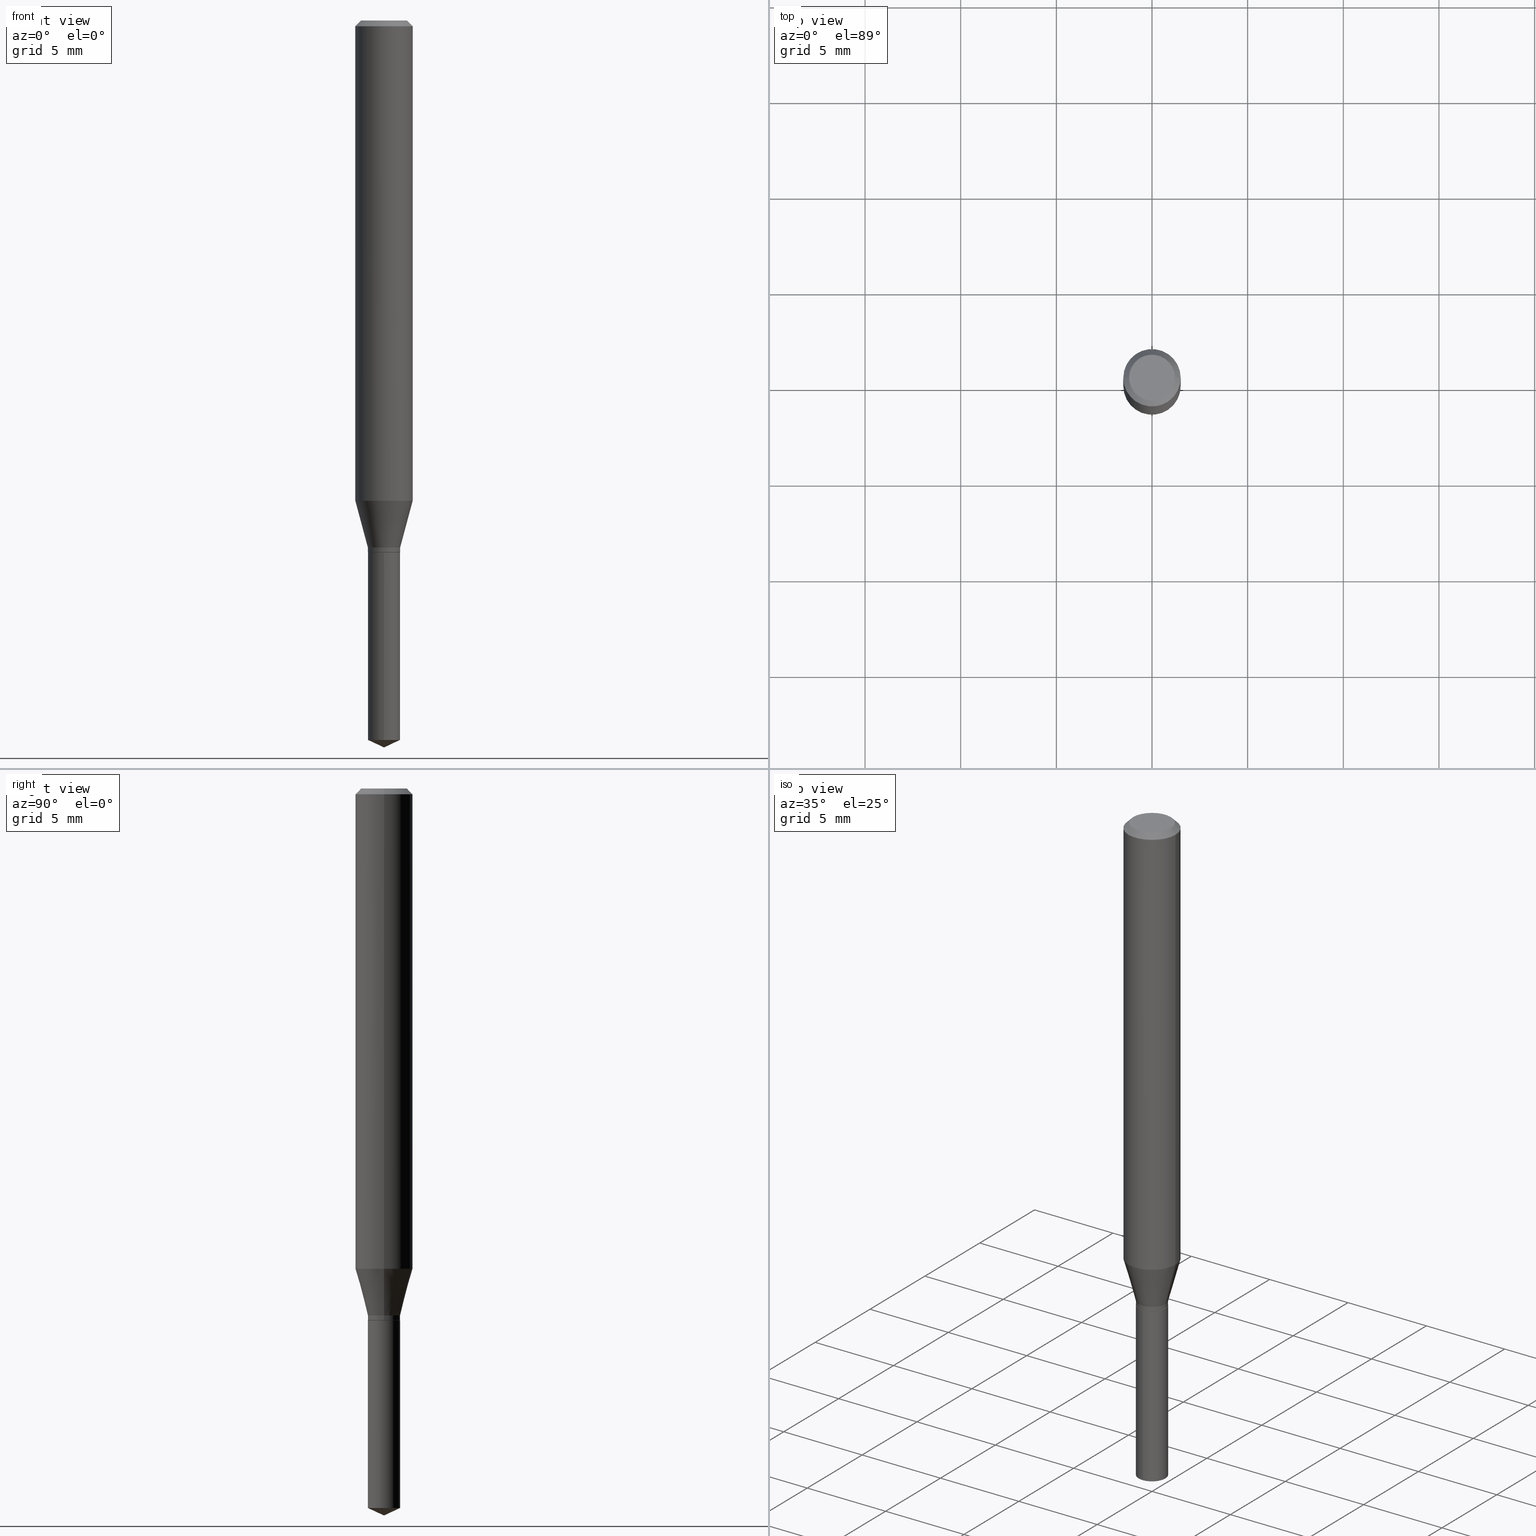
[diagram: canonical four-view strip — front | top / right | iso, engineering-drawing reading convention]
A machine part, canonical four-view strip (front | top / right | iso — engineering-drawing reading convention). The complete STEP part file that produces these views, byte-faithful:
ISO-10303-21;
HEADER;
FILE_DESCRIPTION (( 'STEP AP203' ),
    '1' );
FILE_NAME ('07563.STEP',
    '2024-04-23T23:00:28',
    ( '' ),
    ( '' ),
    'SwSTEP 2.0',
    'SolidWorks 2023',
    '' );
FILE_SCHEMA (( 'CONFIG_CONTROL_DESIGN' ));
ENDSEC;

DATA;
#1 = VERTEX_POINT ( 'NONE', #280 ) ;
#2 = EDGE_CURVE ( 'NONE', #275, #187, #239, .T. ) ;
#3 = CONICAL_SURFACE ( 'NONE', #198, 0.03275000000000000133, 0.7853981633972775267 ) ;
#4 = CIRCLE ( 'NONE', #407, 0.05904999999999999832 ) ;
#5 = CARTESIAN_POINT ( 'NONE',  ( -9.261968845786000133E-28, 1.322362114038720264E-13, 37.87397874015748300 ) ) ;
#6 = EDGE_LOOP ( 'NONE', ( #415, #342, #57, #490 ) ) ;
#7 = DIRECTION ( 'NONE',  ( 1.000000000000000000, -6.982962677686267499E-15, 0.000000000000000000 ) ) ;
#8 = FACE_OUTER_BOUND ( 'NONE', #338, .T. ) ;
#9 =( CONVERSION_BASED_UNIT ( 'INCH', #194 ) LENGTH_UNIT ( ) NAMED_UNIT ( #343 ) );
#10 = CLOSED_SHELL ( 'NONE', ( #324, #39, #47, #306, #248, #474, #129, #33, #339, #136, #216, #115 ) ) ;
#11 = DIRECTION ( 'NONE',  ( -2.445470214571802116E-29, 3.491479321953280158E-15, 1.000000000000000000 ) ) ;
#12 = CONICAL_SURFACE ( 'NONE', #472, 0.03275000000000000133, 0.7853981633972775267 ) ;
#13 = DESIGN_CONTEXT ( 'detailed design', #291, 'design' ) ;
#14 = ORIENTED_EDGE ( 'NONE', *, *, #436, .T. ) ;
#15 = APPROVAL_DATE_TIME ( #400, #347 ) ;
#16 = DIRECTION ( 'NONE',  ( 1.000000000000000000, -6.982962677686267499E-15, 0.000000000000000000 ) ) ;
#17 = PERSON_AND_ORGANIZATION ( #206, #391 ) ;
#18 = CARTESIAN_POINT ( 'NONE',  ( 2.362554596402600471E-16, 0.03324999999999617845, -1.094500000000000028 ) ) ;
#19 = EDGE_CURVE ( 'NONE', #158, #299, #384, .T. ) ;
#20 = APPLICATION_PROTOCOL_DEFINITION ( 'international standard', 'config_control_design', 1994, #291 ) ;
#21 = PLANE ( 'NONE',  #89 ) ;
#22 = CC_DESIGN_APPROVAL ( #428, ( #67 ) ) ;
#23 = VERTEX_POINT ( 'NONE', #282 ) ;
#24 = DATE_AND_TIME ( #366, #455 ) ;
#25 = CARTESIAN_POINT ( 'NONE',  ( 3.620750092037578923E-29, -5.169469978151881884E-15, -1.480595270366346305 ) ) ;
#26 = ORIENTED_EDGE ( 'NONE', *, *, #152, .T. ) ;
#27 = DATE_AND_TIME ( #226, #228 ) ;
#28 = CARTESIAN_POINT ( 'NONE',  ( 2.676565608369632355E-29, -3.821426325363822773E-15, -1.094500000000000028 ) ) ;
#29 = SECURITY_CLASSIFICATION ( '', '', #124 ) ;
#30 = EDGE_LOOP ( 'NONE', ( #35, #169, #128, #458 ) ) ;
#31 = DIRECTION ( 'NONE',  ( 1.000000000000000000, -6.982962677686266711E-15, 0.000000000000000000 ) ) ;
#32 = ORIENTED_EDGE ( 'NONE', *, *, #204, .T. ) ;
#33 = ADVANCED_FACE ( 'NONE', ( #8 ), #381, .T. ) ;
#34 = FACE_OUTER_BOUND ( 'NONE', #307, .T. ) ;
#35 = ORIENTED_EDGE ( 'NONE', *, *, #56, .T. ) ;
#36 = AXIS2_PLACEMENT_3D ( 'NONE', #425, #416, #456 ) ;
#37 = DIRECTION ( 'NONE',  ( -6.982962677686266711E-15, -1.000000000000000000, 3.520397390770457025E-15 ) ) ;
#38 = ORIENTED_EDGE ( 'NONE', *, *, #284, .T. ) ;
#39 = ADVANCED_FACE ( 'NONE', ( #429 ), #334, .T. ) ;
#40 = DIRECTION ( 'NONE',  ( -0.2588190451025211281, 5.211531920934547886E-15, 0.9659258262890679791 ) ) ;
#41 = DIRECTION ( 'NONE',  ( -6.982962677686265922E-15, -1.000000000000000000, 4.108042095735734288E-15 ) ) ;
#42 = AXIS2_PLACEMENT_3D ( 'NONE', #293, #435, #399 ) ;
#43 = AXIS2_PLACEMENT_3D ( 'NONE', #271, #274, #376 ) ;
#44 = DIRECTION ( 'NONE',  ( -6.982962677686266711E-15, -1.000000000000000000, 3.520397390770457025E-15 ) ) ;
#45 = DIRECTION ( 'NONE',  ( -2.445468806185136597E-29, 3.491481338843145583E-15, 1.000000000000000000 ) ) ;
#46 = DIRECTION ( 'NONE',  ( 1.000000000000000000, -6.982962677686266711E-15, 0.000000000000000000 ) ) ;
#47 = ADVANCED_FACE ( 'NONE', ( #195 ), #201, .T. ) ;
#48 = LINE ( 'NONE', #460, #317 ) ;
#49 = DIRECTION ( 'NONE',  ( 1.000000000000000000, -6.982962677686266711E-15, 4.876176775795935793E-29 ) ) ;
#50 = AXIS2_PLACEMENT_3D ( 'NONE', #330, #369, #367 ) ;
#51 = CONICAL_SURFACE ( 'NONE', #406, 0.03325000000000000178, 0.2617993877991498519 ) ;
#52 = FACE_OUTER_BOUND ( 'NONE', #146, .T. ) ;
#53 = DIRECTION ( 'NONE',  ( -1.000000000000000000, 6.982962677686266711E-15, 0.000000000000000000 ) ) ;
#54 =( NAMED_UNIT ( * ) PLANE_ANGLE_UNIT ( ) SI_UNIT ( $, .RADIAN. ) );
#55 = DIRECTION ( 'NONE',  ( 2.445470214571801836E-29, -3.491479321953280158E-15, -1.000000000000000000 ) ) ;
#56 = EDGE_CURVE ( 'NONE', #158, #402, #96, .T. ) ;
#57 = ORIENTED_EDGE ( 'NONE', *, *, #56, .F. ) ;
#58 = VECTOR ( 'NONE', #238, 39.37007874015748143 ) ;
#59 = ORIENTED_EDGE ( 'NONE', *, *, #288, .T. ) ;
#60 = APPROVAL_DATE_TIME ( #292, #428 ) ;
#61 = CARTESIAN_POINT ( 'NONE',  ( 2.676565608369631794E-29, -3.821426325363822773E-15, -1.094499999999999806 ) ) ;
#62 = PLANE ( 'NONE',  #208 ) ;
#63 = ORIENTED_EDGE ( 'NONE', *, *, #192, .F. ) ;
#64 = CARTESIAN_POINT ( 'NONE',  ( 0.05904999999999999832, -4.463468013801466955E-16, -0.01181000000000007218 ) ) ;
#65 = AXIS2_PLACEMENT_3D ( 'NONE', #332, #440, #361 ) ;
#66 = VERTEX_POINT ( 'NONE', #462 ) ;
#67 = PRODUCT_DEFINITION ( 'UNKNOWN', '', #243, #13 ) ;
#68 = DIRECTION ( 'NONE',  ( 1.000000000000000000, -6.982962677686267499E-15, 4.876176775795936353E-29 ) ) ;
#69 = ORIENTED_EDGE ( 'NONE', *, *, #266, .T. ) ;
#70 = EDGE_CURVE ( 'NONE', #187, #190, #242, .T. ) ;
#71 = CALENDAR_DATE ( 2024, 23, 4 ) ;
#72 = DIRECTION ( 'NONE',  ( 1.000000000000000000, -6.982962677686265133E-15, 0.000000000000000000 ) ) ;
#73 = ORIENTED_EDGE ( 'NONE', *, *, #245, .T. ) ;
#74 = LINE ( 'NONE', #64, #199 ) ;
#75 = ORIENTED_EDGE ( 'NONE', *, *, #442, .F. ) ;
#76 = CONICAL_SURFACE ( 'NONE', #423, 84.42940631927426409, 1.134464013796315562 ) ;
#77 = EDGE_CURVE ( 'NONE', #1, #469, #132, .T. ) ;
#78 = FACE_OUTER_BOUND ( 'NONE', #368, .T. ) ;
#79 = CARTESIAN_POINT ( 'NONE',  ( -2.321835090330415843E-16, -0.03325000000000382511, -1.094499999999999806 ) ) ;
#80 = ORIENTED_EDGE ( 'NONE', *, *, #387, .T. ) ;
#81 = CARTESIAN_POINT ( 'NONE',  ( 2.675342873966538993E-29, -3.819680584694400481E-15, -1.093999999999999861 ) ) ;
#82 = ORIENTED_EDGE ( 'NONE', *, *, #77, .T. ) ;
#83 = AXIS2_PLACEMENT_3D ( 'NONE', #353, #321, #53 ) ;
#84 = LOCAL_TIME ( 19, 0, 28.00000000000000000, #99 ) ;
#85 = DIRECTION ( 'NONE',  ( -2.445468806185136877E-29, 3.491481338843145188E-15, 1.000000000000000000 ) ) ;
#86 = CARTESIAN_POINT ( 'NONE',  ( -0.04724000000000000421, 3.504923541997677355E-16, -3.380025165670481712E-19 ) ) ;
#87 = DIRECTION ( 'NONE',  ( -1.000000000000000000, 6.982962677686266711E-15, 0.000000000000000000 ) ) ;
#88 = ORIENTED_EDGE ( 'NONE', *, *, #387, .F. ) ;
#89 = AXIS2_PLACEMENT_3D ( 'NONE', #215, #168, #246 ) ;
#90 = AXIS2_PLACEMENT_3D ( 'NONE', #160, #379, #386 ) ;
#91 = EDGE_CURVE ( 'NONE', #66, #374, #349, .T. ) ;
#92 = EDGE_LOOP ( 'NONE', ( #329, #269, #225 ) ) ;
#93 = PLANE ( 'NONE',  #471 ) ;
#94 = EDGE_LOOP ( 'NONE', ( #185, #75, #14, #138 ) ) ;
#95 = EDGE_CURVE ( 'NONE', #441, #346, #116, .T. ) ;
#96 = CIRCLE ( 'NONE', #277, 0.03325000000000000178 ) ;
#97 = CARTESIAN_POINT ( 'NONE',  ( 2.676565608369632355E-29, -3.821426325363822773E-15, -1.094500000000000028 ) ) ;
#98 = ORIENTED_EDGE ( 'NONE', *, *, #304, .T. ) ;
#99 = COORDINATED_UNIVERSAL_TIME_OFFSET ( 5, 0, .BEHIND. ) ;
#100 = ORIENTED_EDGE ( 'NONE', *, *, #95, .T. ) ;
#101 = CARTESIAN_POINT ( 'NONE',  ( -0.05905000000000011628, -3.030752074152826708E-15, -0.9882130891647225024 ) ) ;
#102 = EDGE_CURVE ( 'NONE', #299, #258, #127, .T. ) ;
#103 = AXIS2_PLACEMENT_3D ( 'NONE', #345, #486, #261 ) ;
#104 = FACE_OUTER_BOUND ( 'NONE', #30, .T. ) ;
#105 = ORIENTED_EDGE ( 'NONE', *, *, #457, .T. ) ;
#106 = PERSON_AND_ORGANIZATION ( #206, #391 ) ;
#107 = ORIENTED_EDGE ( 'NONE', *, *, #232, .F. ) ;
#108 = MANIFOLD_SOLID_BREP ( 'Body-Move/Copy2[2]', #10 ) ;
#109 = MANIFOLD_SOLID_BREP ( 'Body-Move/Copy2[1]', #311 ) ;
#110 = LOCAL_TIME ( 19, 0, 28.00000000000000000, #322 ) ;
#111 = FACE_OUTER_BOUND ( 'NONE', #92, .T. ) ;
#112 = ORIENTED_EDGE ( 'NONE', *, *, #70, .F. ) ;
#113 = LINE ( 'NONE', #79, #220 ) ;
#114 = DIRECTION ( 'NONE',  ( -2.445468806185136597E-29, 3.491481338843145583E-15, 1.000000000000000000 ) ) ;
#115 = ADVANCED_FACE ( 'NONE', ( #298 ), #3, .T. ) ;
#116 = CIRCLE ( 'NONE', #147, 0.04724000000000000421 ) ;
#117 = AXIS2_PLACEMENT_3D ( 'NONE', #81, #193, #7 ) ;
#118 = LINE ( 'NONE', #276, #58 ) ;
#119 = EDGE_LOOP ( 'NONE', ( #26, #73, #482, #309 ) ) ;
#120 = DIRECTION ( 'NONE',  ( -2.445470214571802396E-29, 3.491479321953280158E-15, 1.000000000000000000 ) ) ;
#121 = DIRECTION ( 'NONE',  ( 1.000000000000000000, -6.982962677686266711E-15, 4.876176775795935793E-29 ) ) ;
#122 = ADVANCED_FACE ( 'NONE', ( #176 ), #62, .F. ) ;
#123 = PERSON_AND_ORGANIZATION ( #206, #391 ) ;
#124 = SECURITY_CLASSIFICATION_LEVEL ( 'unclassified' ) ;
#125 = DIRECTION ( 'NONE',  ( -2.445470214571802396E-29, 3.491479321953280158E-15, 1.000000000000000000 ) ) ;
#126 = APPROVAL_ROLE ( '' ) ;
#127 = LINE ( 'NONE', #205, #157 ) ;
#128 = ORIENTED_EDGE ( 'NONE', *, *, #310, .F. ) ;
#129 = ADVANCED_FACE ( 'NONE', ( #401 ), #51, .T. ) ;
#130 = DIRECTION ( 'NONE',  ( 1.000000000000000000, -6.982962677686265133E-15, 0.000000000000000000 ) ) ;
#131 = PERSON_AND_ORGANIZATION ( #206, #391 ) ;
#132 = CIRCLE ( 'NONE', #219, 0.03325000000000000178 ) ;
#133 = FACE_OUTER_BOUND ( 'NONE', #409, .T. ) ;
#134 = VERTEX_POINT ( 'NONE', #325 ) ;
#135 = DIRECTION ( 'NONE',  ( 1.000000000000000000, -6.982962677686267499E-15, 0.000000000000000000 ) ) ;
#136 = ADVANCED_FACE ( 'NONE', ( #133 ), #21, .F. ) ;
#137 = ORIENTED_EDGE ( 'NONE', *, *, #372, .F. ) ;
#138 = ORIENTED_EDGE ( 'NONE', *, *, #70, .T. ) ;
#139 = APPROVAL_PERSON_ORGANIZATION ( #106, #256, #452 ) ;
#140 = COORDINATED_UNIVERSAL_TIME_OFFSET ( 5, 0, .BEHIND. ) ;
#141 = CARTESIAN_POINT ( 'NONE',  ( -0.03325000000000000178, -3.566840588694662478E-15, -1.084499999999999797 ) ) ;
#142 = ORIENTED_EDGE ( 'NONE', *, *, #459, .T. ) ;
#143 = CC_DESIGN_PERSON_AND_ORGANIZATION_ASSIGNMENT ( #344, #373, ( #29 ) ) ;
#144 = ORIENTED_EDGE ( 'NONE', *, *, #310, .T. ) ;
#145 = DIRECTION ( 'NONE',  ( 6.439704144417028775E-15, 0.9063077870366519351, 0.4226182617406950559 ) ) ;
#146 = EDGE_LOOP ( 'NONE', ( #167, #32, #105, #371 ) ) ;
#147 = AXIS2_PLACEMENT_3D ( 'NONE', #461, #45, #255 ) ;
#148 = VECTOR ( 'NONE', #40, 39.37007874015748854 ) ;
#149 = CARTESIAN_POINT ( 'NONE',  ( 3.658668015054778287E-29, -5.223602213574301462E-15, -1.496099999999999985 ) ) ;
#150 = CC_DESIGN_PERSON_AND_ORGANIZATION_ASSIGNMENT ( #162, #468, ( #243 ) ) ;
#151 = DIRECTION ( 'NONE',  ( -6.328713451373374112E-15, -0.9063077870366490485, 0.4226182617407013287 ) ) ;
#152 = EDGE_CURVE ( 'NONE', #374, #23, #335, .T. ) ;
#153 = CARTESIAN_POINT ( 'NONE',  ( -0.03325000000000000178, -3.550256052335157800E-15, -1.084499999999999797 ) ) ;
#154 = DIRECTION ( 'NONE',  ( -2.445468806185136597E-29, 3.491481338843145583E-15, 1.000000000000000000 ) ) ;
#155 =( LENGTH_UNIT ( ) NAMED_UNIT ( * ) SI_UNIT ( $, .METRE. ) );
#156 = DIRECTION ( 'NONE',  ( -2.445468806185136877E-29, 3.491481338843145188E-15, 1.000000000000000000 ) ) ;
#157 = VECTOR ( 'NONE', #289, 39.37007874015748854 ) ;
#158 = VERTEX_POINT ( 'NONE', #475 ) ;
#159 = CIRCLE ( 'NONE', #414, 0.03325000000000000178 ) ;
#160 = CARTESIAN_POINT ( 'NONE',  ( 2.416644283416180076E-29, -3.450327559619166201E-15, -0.9882130891647225024 ) ) ;
#161 = CARTESIAN_POINT ( 'NONE',  ( 0.000000000000000000, 0.000000000000000000, 0.000000000000000000 ) ) ;
#162 = PERSON_AND_ORGANIZATION ( #206, #391 ) ;
#163 = DIRECTION ( 'NONE',  ( -2.445470214571802116E-29, 3.491479321953280158E-15, 1.000000000000000000 ) ) ;
#164 = PERSON_AND_ORGANIZATION ( #206, #391 ) ;
#165 = APPROVAL_STATUS ( 'not_yet_approved' ) ;
#166 = DIRECTION ( 'NONE',  ( 1.000000000000000000, -6.982962677686265133E-15, 0.000000000000000000 ) ) ;
#167 = ORIENTED_EDGE ( 'NONE', *, *, #245, .F. ) ;
#168 = DIRECTION ( 'NONE',  ( 2.438088387897960049E-29, -3.491481338843145188E-15, -1.000000000000000000 ) ) ;
#169 = ORIENTED_EDGE ( 'NONE', *, *, #420, .T. ) ;
#170 = APPLICATION_PROTOCOL_DEFINITION ( 'international standard', 'config_control_design', 1994, #263 ) ;
#171 = CARTESIAN_POINT ( 'NONE',  ( -5.110850297619460247E-30, -8.386323468975328386E-15, -1.094500000000000028 ) ) ;
#172 = ORIENTED_EDGE ( 'NONE', *, *, #420, .F. ) ;
#173 = APPROVAL_DATE_TIME ( #218, #256 ) ;
#174 = AXIS2_PLACEMENT_3D ( 'NONE', #28, #432, #130 ) ;
#175 = CIRCLE ( 'NONE', #103, 0.03325000000000000178 ) ;
#176 = FACE_OUTER_BOUND ( 'NONE', #179, .T. ) ;
#177 = ADVANCED_FACE ( 'NONE', ( #431 ), #253, .T. ) ;
#178 = FACE_OUTER_BOUND ( 'NONE', #6, .T. ) ;
#179 = EDGE_LOOP ( 'NONE', ( #82, #389 ) ) ;
#180 = DIRECTION ( 'NONE',  ( -2.445468806185136597E-29, 3.491481338843145583E-15, 1.000000000000000000 ) ) ;
#181 = CIRCLE ( 'NONE', #65, 0.03275000000000000133 ) ;
#182 = EDGE_LOOP ( 'NONE', ( #314, #59, #265, #211 ) ) ;
#183 = AXIS2_PLACEMENT_3D ( 'NONE', #5, #422, #44 ) ;
#184 = CARTESIAN_POINT ( 'NONE',  ( 0.03325000000000000178, -4.018695021008458987E-15, -1.084499999999999797 ) ) ;
#185 = ORIENTED_EDGE ( 'NONE', *, *, #304, .F. ) ;
#186 = DIRECTION ( 'NONE',  ( -2.445468806185136597E-29, 3.491481338843145583E-15, 1.000000000000000000 ) ) ;
#187 = VERTEX_POINT ( 'NONE', #438 ) ;
#188 = CC_DESIGN_PERSON_AND_ORGANIZATION_ASSIGNMENT ( #17, #477, ( #318 ) ) ;
#189 = CARTESIAN_POINT ( 'NONE',  ( 2.888098660104664204E-31, -4.123439461173780263E-17, -0.01181000000000007218 ) ) ;
#190 = VERTEX_POINT ( 'NONE', #478 ) ;
#191 = AXIS2_PLACEMENT_3D ( 'NONE', #161, #234, #49 ) ;
#192 = EDGE_CURVE ( 'NONE', #247, #134, #388, .T. ) ;
#193 = DIRECTION ( 'NONE',  ( -2.445468806185136597E-29, 3.491481338843145583E-15, 1.000000000000000000 ) ) ;
#194 = LENGTH_MEASURE_WITH_UNIT ( LENGTH_MEASURE( 0.02539999999999999897 ), #155 );
#195 = FACE_OUTER_BOUND ( 'NONE', #294, .T. ) ;
#196 = CARTESIAN_POINT ( 'NONE',  ( -0.03325000000000000178, -3.566840588694662478E-15, -1.093999999999999861 ) ) ;
#197 = CARTESIAN_POINT ( 'NONE',  ( 0.000000000000000000, 0.000000000000000000, 0.000000000000000000 ) ) ;
#198 = AXIS2_PLACEMENT_3D ( 'NONE', #97, #210, #166 ) ;
#199 = VECTOR ( 'NONE', #308, 39.37007874015748143 ) ;
#200 = FACE_OUTER_BOUND ( 'NONE', #354, .T. ) ;
#201 = CYLINDRICAL_SURFACE ( 'NONE', #421, 0.05905000000000006077 ) ;
#202 = DIRECTION ( 'NONE',  ( 1.000000000000000000, 0.000000000000000000, 0.000000000000000000 ) ) ;
#203 = DIRECTION ( 'NONE',  ( 1.000000000000000000, -6.982962677686265922E-15, 4.876176775795935793E-29 ) ) ;
#204 = EDGE_CURVE ( 'NONE', #23, #374, #454, .T. ) ;
#205 = CARTESIAN_POINT ( 'NONE',  ( 0.03325000000000000178, -4.018695021008458987E-15, -1.084499999999999797 ) ) ;
#206 = PERSON ( 'UNSPECIFIED', 'UNSPECIFIED', 'UNSPECIFIED', ('UNSPECIFIED'), ('UNSPECIFIED'), ('UNSPECIFIED') ) ;
#207 = EDGE_CURVE ( 'NONE', #469, #1, #296, .T. ) ;
#208 = AXIS2_PLACEMENT_3D ( 'NONE', #365, #55, #328 ) ;
#209 = CONICAL_SURFACE ( 'NONE', #465, 0.03325000000000000178, 0.2617993877991498519 ) ;
#210 = DIRECTION ( 'NONE',  ( -2.445468806185136597E-29, 3.491481338843145583E-15, 1.000000000000000000 ) ) ;
#211 = ORIENTED_EDGE ( 'NONE', *, *, #266, .F. ) ;
#212 = COORDINATED_UNIVERSAL_TIME_OFFSET ( 5, 0, .BEHIND. ) ;
#213 = FACE_OUTER_BOUND ( 'NONE', #319, .T. ) ;
#214 = PERSON_AND_ORGANIZATION ( #206, #391 ) ;
#215 = CARTESIAN_POINT ( 'NONE',  ( 4.132873053354867254E-48, -5.900647395337818946E-34, -1.690012582823346072E-19 ) ) ;
#216 = ADVANCED_FACE ( 'NONE', ( #213 ), #93, .F. ) ;
#217 = PRODUCT_RELATED_PRODUCT_CATEGORY ( 'detail', '', ( #318 ) ) ;
#218 = DATE_AND_TIME ( #71, #357 ) ;
#219 = AXIS2_PLACEMENT_3D ( 'NONE', #316, #163, #41 ) ;
#220 = VECTOR ( 'NONE', #120, 39.37007874015748143 ) ;
#221 = DIRECTION ( 'NONE',  ( 1.000000000000000000, -6.982962677686267499E-15, 0.000000000000000000 ) ) ;
#222 = ORIENTED_EDGE ( 'NONE', *, *, #459, .F. ) ;
#223 = EDGE_LOOP ( 'NONE', ( #466, #98, #142, #479 ) ) ;
#224 = CARTESIAN_POINT ( 'NONE',  ( 2.652110920307780249E-29, -3.786511511975391124E-15, -1.084499999999999797 ) ) ;
#225 = ORIENTED_EDGE ( 'NONE', *, *, #204, .F. ) ;
#226 = CALENDAR_DATE ( 2024, 23, 4 ) ;
#227 = EDGE_LOOP ( 'NONE', ( #489, #453, #38, #395 ) ) ;
#228 = LOCAL_TIME ( 19, 0, 28.00000000000000000, #140 ) ;
#229 = CARTESIAN_POINT ( 'NONE',  ( 0.03275000000000000133, -4.050118353058048418E-15, -1.094500000000000028 ) ) ;
#230 = LINE ( 'NONE', #281, #251 ) ;
#231 = CARTESIAN_POINT ( 'NONE',  ( 2.675342873966538993E-29, -3.819680584694400481E-15, -1.093999999999999861 ) ) ;
#232 = EDGE_CURVE ( 'NONE', #134, #247, #181, .T. ) ;
#233 = LINE ( 'NONE', #149, #390 ) ;
#234 = DIRECTION ( 'NONE',  ( -2.445468806185136597E-29, 3.491481338843145583E-15, 1.000000000000000000 ) ) ;
#235 = AXIS2_PLACEMENT_3D ( 'NONE', #302, #186, #31 ) ;
#236 = CARTESIAN_POINT ( 'NONE',  ( -0.05904999999999999832, 3.711095515056362547E-16, -0.01181000000000007218 ) ) ;
#237 = DIRECTION ( 'NONE',  ( 1.000000000000000000, -6.982962677686266711E-15, 0.000000000000000000 ) ) ;
#238 = DIRECTION ( 'NONE',  ( -2.445468806185136877E-29, 3.491481338843145188E-15, 1.000000000000000000 ) ) ;
#239 = LINE ( 'NONE', #424, #356 ) ;
#240 = CARTESIAN_POINT ( 'NONE',  ( 2.362554596402695134E-16, 0.03324999999999617845, -1.094500000000000028 ) ) ;
#241 = CARTESIAN_POINT ( 'NONE',  ( 2.888098660104664204E-31, -4.123439461173780263E-17, -0.01181000000000007218 ) ) ;
#242 = CIRCLE ( 'NONE', #268, 0.05904999999999999832 ) ;
#243 = PRODUCT_DEFINITION_FORMATION_WITH_SPECIFIED_SOURCE ( 'ANY', '', #318, .NOT_KNOWN. ) ;
#244 = DIRECTION ( 'NONE',  ( -6.982962677686265922E-15, -1.000000000000000000, 4.108042095735734288E-15 ) ) ;
#245 = EDGE_CURVE ( 'NONE', #23, #469, #394, .T. ) ;
#246 = DIRECTION ( 'NONE',  ( -1.000000000000000000, 6.982962677686265922E-15, -4.876176775795935793E-29 ) ) ;
#247 = VERTEX_POINT ( 'NONE', #488 ) ;
#248 = ADVANCED_FACE ( 'NONE', ( #104 ), #267, .T. ) ;
#249 = DIRECTION ( 'NONE',  ( -2.438088387897960049E-29, 3.491481338843145188E-15, 1.000000000000000000 ) ) ;
#250 = VERTEX_POINT ( 'NONE', #141 ) ;
#251 = VECTOR ( 'NONE', #85, 39.37007874015748143 ) ;
#252 = CARTESIAN_POINT ( 'NONE',  ( 0.000000000000000000, 0.000000000000000000, 0.000000000000000000 ) ) ;
#253 = CYLINDRICAL_SURFACE ( 'NONE', #42, 0.03325000000000000178 ) ;
#254 = APPROVAL_STATUS ( 'not_yet_approved' ) ;
#255 = DIRECTION ( 'NONE',  ( 1.000000000000000000, -6.982962677686266711E-15, 4.876185090822587894E-29 ) ) ;
#256 = APPROVAL ( #403, 'UNSPECIFIED' ) ;
#257 = DIRECTION ( 'NONE',  ( -2.445470214571802116E-29, 3.491479321953280158E-15, 1.000000000000000000 ) ) ;
#258 = VERTEX_POINT ( 'NONE', #337 ) ;
#259 = VECTOR ( 'NONE', #125, 39.37007874015748143 ) ;
#260 = CONICAL_SURFACE ( 'NONE', #313, 0.05904999999999999832, 0.7853981633974452814 ) ;
#261 = DIRECTION ( 'NONE',  ( 1.000000000000000000, -6.982962677686267499E-15, 0.000000000000000000 ) ) ;
#262 = ORIENTED_EDGE ( 'NONE', *, *, #382, .T. ) ;
#263 = APPLICATION_CONTEXT ( 'configuration controlled 3d designs of mechanical parts and assemblies' ) ;
#264 = DIRECTION ( 'NONE',  ( -2.445468806185136597E-29, 3.491481338843145583E-15, 1.000000000000000000 ) ) ;
#265 = ORIENTED_EDGE ( 'NONE', *, *, #102, .T. ) ;
#266 = EDGE_CURVE ( 'NONE', #275, #258, #378, .T. ) ;
#267 = CYLINDRICAL_SURFACE ( 'NONE', #448, 0.03325000000000000178 ) ;
#268 = AXIS2_PLACEMENT_3D ( 'NONE', #241, #114, #237 ) ;
#269 = ORIENTED_EDGE ( 'NONE', *, *, #91, .T. ) ;
#270 = ADVANCED_FACE ( 'NONE', ( #78 ), #76, .T. ) ;
#271 = CARTESIAN_POINT ( 'NONE',  ( 0.000000000000000000, 0.000000000000000000, 0.000000000000000000 ) ) ;
#272 = ORIENTED_EDGE ( 'NONE', *, *, #2, .F. ) ;
#273 = CC_DESIGN_PERSON_AND_ORGANIZATION_ASSIGNMENT ( #131, #470, ( #67 ) ) ;
#274 = DIRECTION ( 'NONE',  ( -2.445468806185136597E-29, 3.491481338843145583E-15, 1.000000000000000000 ) ) ;
#275 = VERTEX_POINT ( 'NONE', #101 ) ;
#276 = CARTESIAN_POINT ( 'NONE',  ( 0.05905000000000006077, -4.123439461173744764E-16, 2.879382386107503023E-30 ) ) ;
#277 = AXIS2_PLACEMENT_3D ( 'NONE', #231, #154, #16 ) ;
#278 = CIRCLE ( 'NONE', #90, 0.05905000000000011628 ) ;
#279 = LINE ( 'NONE', #236, #341 ) ;
#280 = CARTESIAN_POINT ( 'NONE',  ( -2.321835090330415843E-16, -0.03325000000000382511, -1.094499999999999806 ) ) ;
#281 = CARTESIAN_POINT ( 'NONE',  ( -0.03325000000000000178, 2.362554596402333244E-16, -1.635545917509756392E-30 ) ) ;
#282 = CARTESIAN_POINT ( 'NONE',  ( 2.362554596402695134E-16, 0.03324999999999482536, -1.480595270366346305 ) ) ;
#283 = PERSON_AND_ORGANIZATION_ROLE ( 'design_supplier' ) ;
#284 = EDGE_CURVE ( 'NONE', #247, #158, #300, .T. ) ;
#285 = AXIS2_PLACEMENT_3D ( 'NONE', #61, #392, #244 ) ;
#286 = CC_DESIGN_SECURITY_CLASSIFICATION ( #29, ( #243 ) ) ;
#287 = MECHANICAL_CONTEXT ( 'NONE', #263, 'mechanical' ) ;
#288 = EDGE_CURVE ( 'NONE', #250, #299, #159, .T. ) ;
#289 = DIRECTION ( 'NONE',  ( 0.2588190451025211281, 1.565188264969622954E-15, 0.9659258262890679791 ) ) ;
#290 = ORIENTED_EDGE ( 'NONE', *, *, #19, .T. ) ;
#291 = APPLICATION_CONTEXT ( 'configuration controlled 3d designs of mechanical parts and assemblies' ) ;
#292 = DATE_AND_TIME ( #398, #110 ) ;
#293 = CARTESIAN_POINT ( 'NONE',  ( 2.676565608369631794E-29, -3.821426325363822773E-15, -1.094499999999999806 ) ) ;
#294 = EDGE_LOOP ( 'NONE', ( #363, #417, #222, #88 ) ) ;
#295 = DIRECTION ( 'NONE',  ( -6.982962677686265922E-15, -1.000000000000000000, 0.000000000000000000 ) ) ;
#296 = CIRCLE ( 'NONE', #285, 0.03325000000000000178 ) ;
#297 = AXIS2_PLACEMENT_3D ( 'NONE', #252, #430, #202 ) ;
#298 = FACE_OUTER_BOUND ( 'NONE', #227, .T. ) ;
#299 = VERTEX_POINT ( 'NONE', #184 ) ;
#300 = LINE ( 'NONE', #229, #463 ) ;
#301 = DATE_TIME_ROLE ( 'classification_date' ) ;
#302 = CARTESIAN_POINT ( 'NONE',  ( 2.416644283416180076E-29, -3.450327559619166201E-15, -0.9882130891647225024 ) ) ;
#303 = ORIENTED_EDGE ( 'NONE', *, *, #288, .F. ) ;
#304 = EDGE_CURVE ( 'NONE', #441, #190, #74, .T. ) ;
#305 = CONICAL_SURFACE ( 'NONE', #183, 84.42940631927426409, 1.134464013796315562 ) ;
#306 = ADVANCED_FACE ( 'NONE', ( #34 ), #209, .T. ) ;
#307 = EDGE_LOOP ( 'NONE', ( #144, #413, #137, #333 ) ) ;
#308 = DIRECTION ( 'NONE',  ( 0.7071067811865453523, -7.319954787623248157E-15, -0.7071067811865496822 ) ) ;
#309 = ORIENTED_EDGE ( 'NONE', *, *, #457, .F. ) ;
#310 = EDGE_CURVE ( 'NONE', #299, #250, #175, .T. ) ;
#311 = CLOSED_SHELL ( 'NONE', ( #177, #270, #405, #473, #122 ) ) ;
#312 = CARTESIAN_POINT ( 'NONE',  ( 0.04724000000000000421, -3.852183633974369345E-16, -3.380025165621689721E-19 ) ) ;
#313 = AXIS2_PLACEMENT_3D ( 'NONE', #189, #315, #87 ) ;
#314 = ORIENTED_EDGE ( 'NONE', *, *, #484, .F. ) ;
#315 = DIRECTION ( 'NONE',  ( 2.445468806185136597E-29, -3.491481338843145583E-15, -1.000000000000000000 ) ) ;
#316 = CARTESIAN_POINT ( 'NONE',  ( 2.676565608369631794E-29, -3.821426325363822773E-15, -1.094499999999999806 ) ) ;
#317 = VECTOR ( 'NONE', #418, 39.37007874015748143 ) ;
#318 = PRODUCT ( '07563', '07563', '', ( #287 ) ) ;
#319 = EDGE_LOOP ( 'NONE', ( #63, #107 ) ) ;
#320 = CARTESIAN_POINT ( 'NONE',  ( -2.321835090330320687E-16, -0.03325000000000517125, -1.480595270366346305 ) ) ;
#321 = DIRECTION ( 'NONE',  ( 2.445468806185136597E-29, -3.491481338843145583E-15, -1.000000000000000000 ) ) ;
#322 = COORDINATED_UNIVERSAL_TIME_OFFSET ( 5, 0, .BEHIND. ) ;
#323 = CC_DESIGN_DATE_AND_TIME_ASSIGNMENT ( #24, #480, ( #67 ) ) ;
#324 = ADVANCED_FACE ( 'NONE', ( #178 ), #12, .T. ) ;
#325 = CARTESIAN_POINT ( 'NONE',  ( -0.03275000000000000133, -3.586074352228278358E-15, -1.094500000000000028 ) ) ;
#326 = VECTOR ( 'NONE', #359, 39.37007874015748143 ) ;
#327 = CIRCLE ( 'NONE', #36, 0.04724000000000000421 ) ;
#328 = DIRECTION ( 'NONE',  ( 6.982962677686265922E-15, 1.000000000000000000, -3.491479321953280158E-15 ) ) ;
#329 = ORIENTED_EDGE ( 'NONE', *, *, #382, .F. ) ;
#330 = CARTESIAN_POINT ( 'NONE',  ( 3.620750092037578923E-29, -5.169469978151881884E-15, -1.480595270366346305 ) ) ;
#331 = ORIENTED_EDGE ( 'NONE', *, *, #442, .T. ) ;
#332 = CARTESIAN_POINT ( 'NONE',  ( 2.676565608369632355E-29, -3.821426325363822773E-15, -1.094500000000000028 ) ) ;
#333 = ORIENTED_EDGE ( 'NONE', *, *, #102, .F. ) ;
#334 = CONICAL_SURFACE ( 'NONE', #83, 0.05904999999999999832, 0.7853981633974452814 ) ;
#335 = CIRCLE ( 'NONE', #50, 0.03325000000000000178 ) ;
#336 = CC_DESIGN_APPROVAL ( #256, ( #29 ) ) ;
#337 = CARTESIAN_POINT ( 'NONE',  ( 0.05905000000000011628, -3.862671505736541121E-15, -0.9882130891647225024 ) ) ;
#338 = EDGE_LOOP ( 'NONE', ( #272, #69, #80, #112 ) ) ;
#339 = ADVANCED_FACE ( 'NONE', ( #352 ), #260, .T. ) ;
#340 = CARTESIAN_POINT ( 'NONE',  ( 2.676565608369632355E-29, -3.821426325363822773E-15, -1.094500000000000028 ) ) ;
#341 = VECTOR ( 'NONE', #385, 39.37007874015748143 ) ;
#342 = ORIENTED_EDGE ( 'NONE', *, *, #351, .T. ) ;
#343 = DIMENSIONAL_EXPONENTS ( 1.000000000000000000, 0.000000000000000000, 0.000000000000000000, 0.000000000000000000, 0.000000000000000000, 0.000000000000000000, 0.000000000000000000 ) ;
#344 = PERSON_AND_ORGANIZATION ( #206, #391 ) ;
#345 = CARTESIAN_POINT ( 'NONE',  ( 2.652110920307780249E-29, -3.786511511975391124E-15, -1.084499999999999797 ) ) ;
#346 = VERTEX_POINT ( 'NONE', #86 ) ;
#347 = APPROVAL ( #254, 'UNSPECIFIED' ) ;
#348 = VECTOR ( 'NONE', #151, 39.37007874015748143 ) ;
#349 = LINE ( 'NONE', #419, #348 ) ;
#350 = CYLINDRICAL_SURFACE ( 'NONE', #370, 0.03325000000000000178 ) ;
#351 = EDGE_CURVE ( 'NONE', #134, #402, #48, .T. ) ;
#352 = FACE_OUTER_BOUND ( 'NONE', #94, .T. ) ;
#353 = CARTESIAN_POINT ( 'NONE',  ( 2.888098660104664204E-31, -4.123439461173780263E-17, -0.01181000000000007218 ) ) ;
#354 = EDGE_LOOP ( 'NONE', ( #172, #447, #290, #303 ) ) ;
#355 = CARTESIAN_POINT ( 'NONE',  ( 2.676565608369631794E-29, -3.821426325363822773E-15, -1.094499999999999806 ) ) ;
#356 = VECTOR ( 'NONE', #156, 39.37007874015748143 ) ;
#357 = LOCAL_TIME ( 19, 0, 28.00000000000000000, #450 ) ;
#358 = CYLINDRICAL_SURFACE ( 'NONE', #43, 0.03325000000000000178 ) ;
#359 = DIRECTION ( 'NONE',  ( -2.445468806185136877E-29, 3.491481338843145188E-15, 1.000000000000000000 ) ) ;
#360 = EDGE_CURVE ( 'NONE', #402, #158, #487, .T. ) ;
#361 = DIRECTION ( 'NONE',  ( 1.000000000000000000, -6.982962677686265133E-15, 0.000000000000000000 ) ) ;
#362 = DIRECTION ( 'NONE',  ( -2.445468806185136597E-29, 3.491481338843145583E-15, 1.000000000000000000 ) ) ;
#363 = ORIENTED_EDGE ( 'NONE', *, *, #372, .T. ) ;
#364 = CC_DESIGN_APPROVAL ( #347, ( #243 ) ) ;
#365 = CARTESIAN_POINT ( 'NONE',  ( 2.676565608369631794E-29, -3.821426325363822773E-15, -1.094499999999999806 ) ) ;
#366 = CALENDAR_DATE ( 2024, 23, 4 ) ;
#367 = DIRECTION ( 'NONE',  ( -6.982962677686265922E-15, -1.000000000000000000, 0.000000000000000000 ) ) ;
#368 = EDGE_LOOP ( 'NONE', ( #476, #262, #433 ) ) ;
#369 = DIRECTION ( 'NONE',  ( -2.445470214571802116E-29, 3.491479321953280158E-15, 1.000000000000000000 ) ) ;
#370 = AXIS2_PLACEMENT_3D ( 'NONE', #355, #11, #467 ) ;
#371 = ORIENTED_EDGE ( 'NONE', *, *, #207, .F. ) ;
#372 = EDGE_CURVE ( 'NONE', #258, #275, #278, .T. ) ;
#373 = PERSON_AND_ORGANIZATION_ROLE ( 'classification_officer' ) ;
#374 = VERTEX_POINT ( 'NONE', #320 ) ;
#375 = DIRECTION ( 'NONE',  ( -2.445468806185136597E-29, 3.491481338843145583E-15, 1.000000000000000000 ) ) ;
#376 = DIRECTION ( 'NONE',  ( 1.000000000000000000, -6.982962677686267499E-15, 4.876176775795936353E-29 ) ) ;
#377 = DIRECTION ( 'NONE',  ( -2.445468806185136597E-29, 3.491481338843145583E-15, 1.000000000000000000 ) ) ;
#378 = CIRCLE ( 'NONE', #235, 0.05905000000000011628 ) ;
#379 = DIRECTION ( 'NONE',  ( -2.445468806185136597E-29, 3.491481338843145583E-15, 1.000000000000000000 ) ) ;
#380 = APPROVAL_PERSON_ORGANIZATION ( #214, #428, #126 ) ;
#381 = CYLINDRICAL_SURFACE ( 'NONE', #191, 0.05905000000000006077 ) ;
#382 = EDGE_CURVE ( 'NONE', #66, #23, #233, .T. ) ;
#383 = DIRECTION ( 'NONE',  ( -2.445468806185136597E-29, 3.491481338843145583E-15, 1.000000000000000000 ) ) ;
#384 = LINE ( 'NONE', #426, #326 ) ;
#385 = DIRECTION ( 'NONE',  ( -0.7071067811865453523, 2.468850131082234184E-15, -0.7071067811865496822 ) ) ;
#386 = DIRECTION ( 'NONE',  ( 1.000000000000000000, -6.982962677686266711E-15, 0.000000000000000000 ) ) ;
#387 = EDGE_CURVE ( 'NONE', #258, #190, #118, .T. ) ;
#388 = CIRCLE ( 'NONE', #174, 0.03275000000000000133 ) ;
#389 = ORIENTED_EDGE ( 'NONE', *, *, #207, .T. ) ;
#390 = VECTOR ( 'NONE', #145, 39.37007874015748854 ) ;
#391 = ORGANIZATION ( 'UNSPECIFIED', 'UNSPECIFIED', '' ) ;
#392 = DIRECTION ( 'NONE',  ( -2.445470214571802116E-29, 3.491479321953280158E-15, 1.000000000000000000 ) ) ;
#393 = CC_DESIGN_DATE_AND_TIME_ASSIGNMENT ( #27, #301, ( #29 ) ) ;
#394 = LINE ( 'NONE', #18, #259 ) ;
#395 = ORIENTED_EDGE ( 'NONE', *, *, #360, .F. ) ;
#396 = AXIS2_PLACEMENT_3D ( 'NONE', #25, #485, #295 ) ;
#397 = UNCERTAINTY_MEASURE_WITH_UNIT (LENGTH_MEASURE( 1.000000000000000082E-05 ), #9, 'distance_accuracy_value', 'NONE');
#398 = CALENDAR_DATE ( 2024, 23, 4 ) ;
#399 = DIRECTION ( 'NONE',  ( -6.982962677686265922E-15, -1.000000000000000000, 4.108042095735734288E-15 ) ) ;
#400 = DATE_AND_TIME ( #434, #84 ) ;
#401 = FACE_OUTER_BOUND ( 'NONE', #182, .T. ) ;
#402 = VERTEX_POINT ( 'NONE', #196 ) ;
#403 = APPROVAL_STATUS ( 'not_yet_approved' ) ;
#404 = DIRECTION ( 'NONE',  ( 1.000000000000000000, -6.982962677686267499E-15, 0.000000000000000000 ) ) ;
#405 = ADVANCED_FACE ( 'NONE', ( #111 ), #305, .T. ) ;
#406 = AXIS2_PLACEMENT_3D ( 'NONE', #481, #362, #135 ) ;
#407 = AXIS2_PLACEMENT_3D ( 'NONE', #427, #383, #46 ) ;
#408 = CARTESIAN_POINT ( 'NONE',  ( 0.000000000000000000, 0.000000000000000000, 0.000000000000000000 ) ) ;
#409 = EDGE_LOOP ( 'NONE', ( #331, #100 ) ) ;
#410 = ADVANCED_BREP_SHAPE_REPRESENTATION ( '07563', ( #109, #108, #297 ), #483 ) ;
#411 = CARTESIAN_POINT ( 'NONE',  ( 2.652110920307780249E-29, -3.786511511975391124E-15, -1.084499999999999797 ) ) ;
#412 = CARTESIAN_POINT ( 'NONE',  ( -9.261968845786000133E-28, 1.322362114038720264E-13, 37.87397874015748300 ) ) ;
#413 = ORIENTED_EDGE ( 'NONE', *, *, #484, .T. ) ;
#414 = AXIS2_PLACEMENT_3D ( 'NONE', #224, #446, #404 ) ;
#415 = ORIENTED_EDGE ( 'NONE', *, *, #192, .T. ) ;
#416 = DIRECTION ( 'NONE',  ( -2.445468806185136597E-29, 3.491481338843145583E-15, 1.000000000000000000 ) ) ;
#417 = ORIENTED_EDGE ( 'NONE', *, *, #2, .T. ) ;
#418 = DIRECTION ( 'NONE',  ( -0.7071067811864267805, 7.493145998869918709E-15, 0.7071067811866682540 ) ) ;
#419 = CARTESIAN_POINT ( 'NONE',  ( 3.658664905062460986E-29, -5.223606628546217219E-15, -1.496099999999999985 ) ) ;
#420 = EDGE_CURVE ( 'NONE', #402, #250, #230, .T. ) ;
#421 = AXIS2_PLACEMENT_3D ( 'NONE', #197, #377, #121 ) ;
#422 = DIRECTION ( 'NONE',  ( -2.445470214571802116E-29, 3.491479321953280158E-15, 1.000000000000000000 ) ) ;
#423 = AXIS2_PLACEMENT_3D ( 'NONE', #412, #257, #37 ) ;
#424 = CARTESIAN_POINT ( 'NONE',  ( -0.05905000000000006077, 4.195754854663395916E-16, -2.904631170795524694E-30 ) ) ;
#425 = CARTESIAN_POINT ( 'NONE',  ( 8.265746106709734507E-48, -1.180129479067563789E-33, -3.380025165646692144E-19 ) ) ;
#426 = CARTESIAN_POINT ( 'NONE',  ( 0.03325000000000000178, -2.321835090330684056E-16, 1.621328777952148847E-30 ) ) ;
#427 = CARTESIAN_POINT ( 'NONE',  ( 2.888098660104664204E-31, -4.123439461173780263E-17, -0.01181000000000007218 ) ) ;
#428 = APPROVAL ( #165, 'UNSPECIFIED' ) ;
#429 = FACE_OUTER_BOUND ( 'NONE', #223, .T. ) ;
#430 = DIRECTION ( 'NONE',  ( 0.000000000000000000, 0.000000000000000000, 1.000000000000000000 ) ) ;
#431 = FACE_OUTER_BOUND ( 'NONE', #119, .T. ) ;
#432 = DIRECTION ( 'NONE',  ( -2.445468806185136597E-29, 3.491481338843145583E-15, 1.000000000000000000 ) ) ;
#433 = ORIENTED_EDGE ( 'NONE', *, *, #152, .F. ) ;
#434 = CALENDAR_DATE ( 2024, 23, 4 ) ;
#435 = DIRECTION ( 'NONE',  ( -2.445470214571802116E-29, 3.491479321953280158E-15, 1.000000000000000000 ) ) ;
#436 = EDGE_CURVE ( 'NONE', #346, #187, #279, .T. ) ;
#437 =( NAMED_UNIT ( * ) SI_UNIT ( $, .STERADIAN. ) SOLID_ANGLE_UNIT ( ) );
#438 = CARTESIAN_POINT ( 'NONE',  ( -0.05904999999999999832, -1.326205491649111683E-15, -0.01181000000000007218 ) ) ;
#439 = APPROVAL_ROLE ( '' ) ;
#440 = DIRECTION ( 'NONE',  ( -2.445468806185136597E-29, 3.491481338843145583E-15, 1.000000000000000000 ) ) ;
#441 = VERTEX_POINT ( 'NONE', #312 ) ;
#442 = EDGE_CURVE ( 'NONE', #346, #441, #327, .T. ) ;
#443 = DIRECTION ( 'NONE',  ( 0.7071067811864267805, -2.468850131080992517E-15, 0.7071067811866682540 ) ) ;
#444 = PRODUCT_DEFINITION_SHAPE ( 'NONE', 'NONE',  #67 ) ;
#445 = SHAPE_DEFINITION_REPRESENTATION ( #444, #410 ) ;
#446 = DIRECTION ( 'NONE',  ( -2.445468806185136597E-29, 3.491481338843145583E-15, 1.000000000000000000 ) ) ;
#447 = ORIENTED_EDGE ( 'NONE', *, *, #360, .T. ) ;
#448 = AXIS2_PLACEMENT_3D ( 'NONE', #408, #375, #68 ) ;
#449 = APPROVAL_PERSON_ORGANIZATION ( #164, #347, #439 ) ;
#450 = COORDINATED_UNIVERSAL_TIME_OFFSET ( 5, 0, .BEHIND. ) ;
#451 = CC_DESIGN_PERSON_AND_ORGANIZATION_ASSIGNMENT ( #123, #283, ( #243 ) ) ;
#452 = APPROVAL_ROLE ( '' ) ;
#453 = ORIENTED_EDGE ( 'NONE', *, *, #232, .T. ) ;
#454 = CIRCLE ( 'NONE', #396, 0.03325000000000000178 ) ;
#455 = LOCAL_TIME ( 19, 0, 28.00000000000000000, #212 ) ;
#456 = DIRECTION ( 'NONE',  ( 1.000000000000000000, -6.982962677686266711E-15, 4.876185090822587894E-29 ) ) ;
#457 = EDGE_CURVE ( 'NONE', #374, #1, #113, .T. ) ;
#458 = ORIENTED_EDGE ( 'NONE', *, *, #19, .F. ) ;
#459 = EDGE_CURVE ( 'NONE', #190, #187, #4, .T. ) ;
#460 = CARTESIAN_POINT ( 'NONE',  ( -0.03275000000000000133, -3.588723579402390347E-15, -1.094500000000000028 ) ) ;
#461 = CARTESIAN_POINT ( 'NONE',  ( 8.265746106709734507E-48, -1.180129479067563789E-33, -3.380025165646692144E-19 ) ) ;
#462 = CARTESIAN_POINT ( 'NONE',  ( 3.658667988020872822E-29, -5.223602213574301462E-15, -1.496099999999999985 ) ) ;
#463 = VECTOR ( 'NONE', #443, 39.37007874015748143 ) ;
#464 = LINE ( 'NONE', #153, #148 ) ;
#465 = AXIS2_PLACEMENT_3D ( 'NONE', #411, #180, #221 ) ;
#466 = ORIENTED_EDGE ( 'NONE', *, *, #95, .F. ) ;
#467 = DIRECTION ( 'NONE',  ( -6.982962677686265922E-15, -1.000000000000000000, 4.108042095735734288E-15 ) ) ;
#468 = PERSON_AND_ORGANIZATION_ROLE ( 'creator' ) ;
#469 = VERTEX_POINT ( 'NONE', #240 ) ;
#470 = PERSON_AND_ORGANIZATION_ROLE ( 'creator' ) ;
#471 = AXIS2_PLACEMENT_3D ( 'NONE', #171, #249, #203 ) ;
#472 = AXIS2_PLACEMENT_3D ( 'NONE', #340, #264, #72 ) ;
#473 = ADVANCED_FACE ( 'NONE', ( #52 ), #350, .T. ) ;
#474 = ADVANCED_FACE ( 'NONE', ( #200 ), #358, .T. ) ;
#475 = CARTESIAN_POINT ( 'NONE',  ( 0.03325000000000000178, -4.051864093727469133E-15, -1.093999999999999861 ) ) ;
#476 = ORIENTED_EDGE ( 'NONE', *, *, #91, .F. ) ;
#477 = PERSON_AND_ORGANIZATION_ROLE ( 'design_owner' ) ;
#478 = CARTESIAN_POINT ( 'NONE',  ( 0.05904999999999999832, -4.535783407291118600E-16, -0.01181000000000007218 ) ) ;
#479 = ORIENTED_EDGE ( 'NONE', *, *, #436, .F. ) ;
#480 = DATE_TIME_ROLE ( 'creation_date' ) ;
#481 = CARTESIAN_POINT ( 'NONE',  ( 2.652110920307780249E-29, -3.786511511975391124E-15, -1.084499999999999797 ) ) ;
#482 = ORIENTED_EDGE ( 'NONE', *, *, #77, .F. ) ;
#483 =( GEOMETRIC_REPRESENTATION_CONTEXT ( 3 ) GLOBAL_UNCERTAINTY_ASSIGNED_CONTEXT ( ( #397 ) ) GLOBAL_UNIT_ASSIGNED_CONTEXT ( ( #9, #54, #437 ) ) REPRESENTATION_CONTEXT ( 'NONE', 'WORKASPACE' ) );
#484 = EDGE_CURVE ( 'NONE', #250, #275, #464, .T. ) ;
#485 = DIRECTION ( 'NONE',  ( -2.445470214571802116E-29, 3.491479321953280158E-15, 1.000000000000000000 ) ) ;
#486 = DIRECTION ( 'NONE',  ( -2.445468806185136597E-29, 3.491481338843145583E-15, 1.000000000000000000 ) ) ;
#487 = CIRCLE ( 'NONE', #117, 0.03325000000000000178 ) ;
#488 = CARTESIAN_POINT ( 'NONE',  ( 0.03275000000000000133, -4.050118353058048418E-15, -1.094500000000000028 ) ) ;
#489 = ORIENTED_EDGE ( 'NONE', *, *, #351, .F. ) ;
#490 = ORIENTED_EDGE ( 'NONE', *, *, #284, .F. ) ;
ENDSEC;
END-ISO-10303-21;
